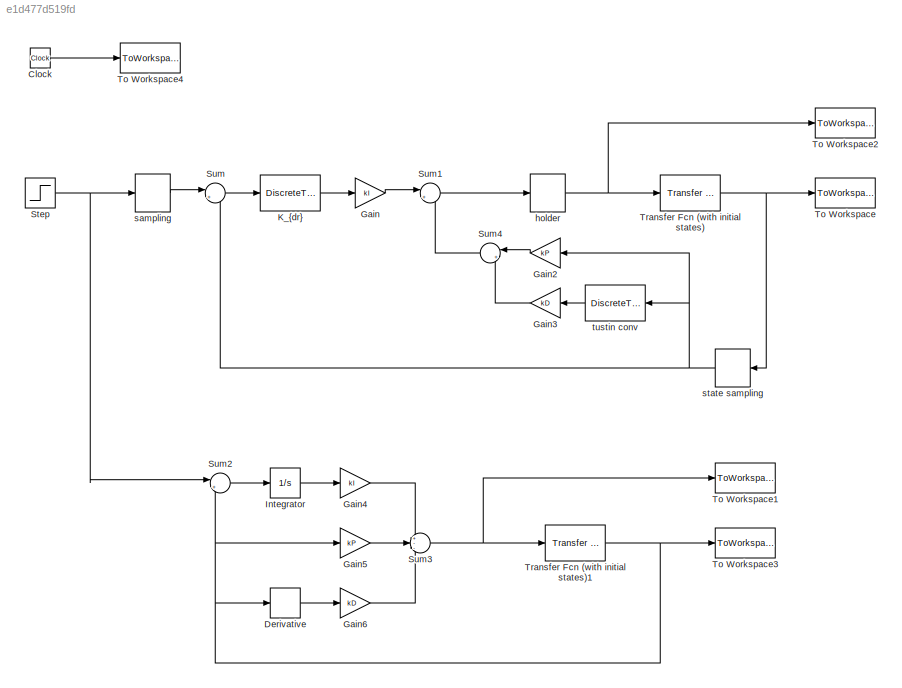
MODEL slx_e1d477d519fd
KIND model
CONFIG AbsTol = auto
CONFIG EnableMultiTasking = off
CONFIG FixedStep = auto
CONFIG MaxStep = auto
CONFIG MinStep = auto
CONFIG RelTol = 1e-3
CONFIG SampleTimeConstraint = Unconstrained
CONFIG SolverName = VariableStepAuto
CONFIG StartTime = 0.0
CONFIG StopTime = 1
BLOCK [Clock] Clock
  Decimation = 1
  DisplayTime = on
BLOCK [Derivative] Derivative
BLOCK [Gain] Gain
  Gain = kI
BLOCK [Gain] Gain2
  Gain = kP
BLOCK [Gain] Gain3
  Gain = kD
BLOCK [Gain] Gain4
  Gain = kI
BLOCK [Gain] Gain5
  Gain = kP
BLOCK [Gain] Gain6
  Gain = kD
BLOCK [Integrator] Integrator
BLOCK [DiscreteTransferFcn] K_{dr}
  Denominator = [2 -2]
  InputPortMap = u0
  Numerator = [h h]
  SampleTime = h
BLOCK [Step] Step
  After = xf
  SampleTime = 0
  Time = 0
BLOCK [Sum] Sum
  Inputs = |+-
BLOCK [Sum] Sum1
  Inputs = |+-
BLOCK [Sum] Sum2
  Inputs = |+-
BLOCK [Sum] Sum3
  Inputs = +--
BLOCK [Sum] Sum4
  Inputs = |++
BLOCK [ToWorkspace] To Workspace
  MaxDataPoints = inf
  SampleTime = t_sim
  VariableName = yd
BLOCK [ToWorkspace] To Workspace1
  MaxDataPoints = inf
  SampleTime = t_sim
  VariableName = uc
BLOCK [ToWorkspace] To Workspace2
  MaxDataPoints = inf
  SampleTime = t_sim
  VariableName = ud
BLOCK [ToWorkspace] To Workspace3
  MaxDataPoints = inf
  SampleTime = t_sim
  VariableName = yc
BLOCK [ToWorkspace] To Workspace4
  MaxDataPoints = inf
  SampleTime = t_sim
  VariableName = t
BLOCK [Reference] Transfer Fcn (with initial states)  REF=simulink_extras/Additional
Linear/Transfer Fcn
(with initial states)
  SourceBlock = simulink_extras/Additional\nLinear/Transfer Fcn\n(with initial states)
  SourceType = Transfer Function with Initial States
BLOCK [Reference] Transfer Fcn (with initial states)1  REF=simulink_extras/Additional
Linear/Transfer Fcn
(with initial states)
  SourceBlock = simulink_extras/Additional\nLinear/Transfer Fcn\n(with initial states)
  SourceType = Transfer Function with Initial States
BLOCK [ZeroOrderHold] holder
  SampleTime = t_sim
BLOCK [ZeroOrderHold] sampling
  SampleTime = h
BLOCK [ZeroOrderHold] state sampling
  SampleTime = h
BLOCK [DiscreteTransferFcn] tustin conv
  Denominator = [h h]
  InputPortMap = u0
  Numerator = [2 -2]
  SampleTime = h
LINE Clock:1 -> To Workspace4:1
LINE Derivative:1 -> Gain6:1
LINE Gain2:1 -> Sum4:1
LINE Gain3:1 -> Sum4:2
LINE Gain4:1 -> Sum3:1
LINE Gain5:1 -> Sum3:2
LINE Gain6:1 -> Sum3:3
LINE Gain:1 -> Sum1:1
LINE Integrator:1 -> Gain4:1
LINE K_{dr}:1 -> Gain:1
NET Step:1 -> Sum2:1, sampling:1
LINE Sum1:1 -> holder:1
LINE Sum2:1 -> Integrator:1
NET Sum3:1 -> To Workspace1:1, Transfer Fcn (with initial states)1:1
LINE Sum4:1 -> Sum1:2
LINE Sum:1 -> K_{dr}:1
NET Transfer Fcn (with initial states)1:1 -> Derivative:1, Gain5:1, Sum2:2, To Workspace3:1
NET Transfer Fcn (with initial states):1 -> To Workspace:1, state sampling:1
NET holder:1 -> To Workspace2:1, Transfer Fcn (with initial states):1
LINE sampling:1 -> Sum:1
NET state sampling:1 -> Gain2:1, Sum:2, tustin conv:1
LINE tustin conv:1 -> Gain3:1
note: NET lines group one-source signal fan-out (src -> all destinations, sorted); 1:1 wires keep LINE
